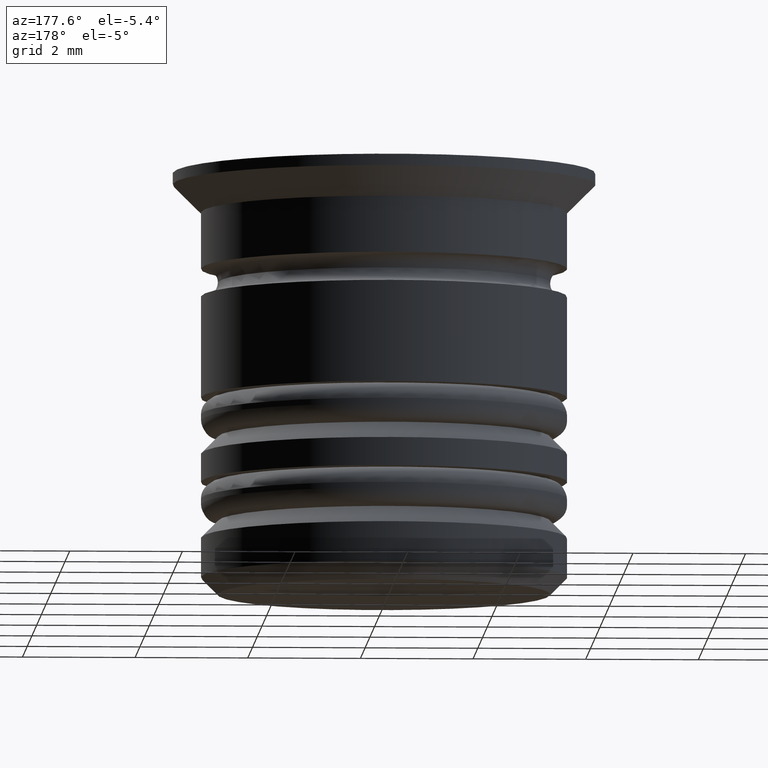
[diagram: clean part render]
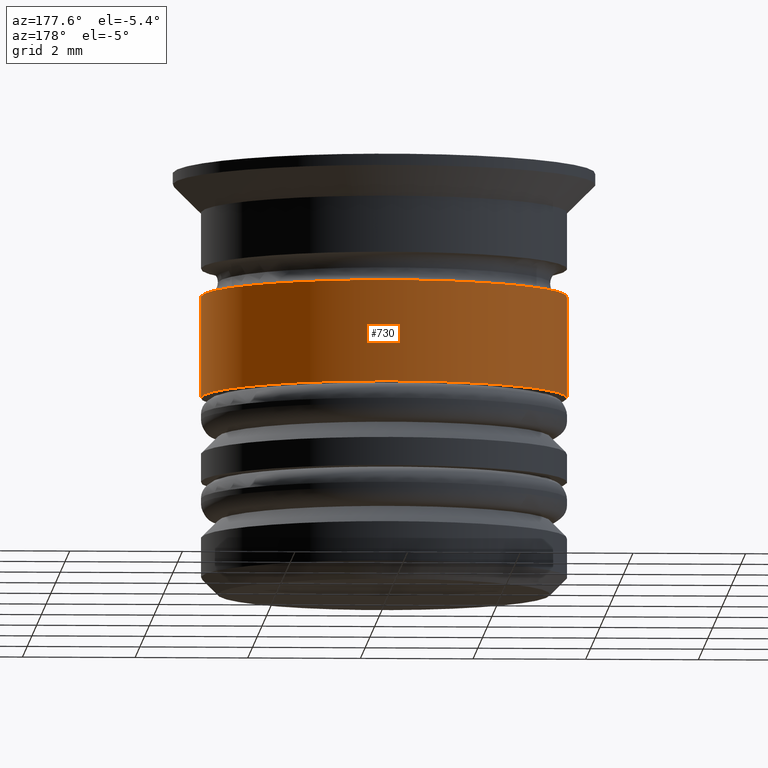
[diagram: same view with one face highlighted and labeled with its STEP entity id]
A machine part, auxiliary view. The second image highlights one B-rep face of the part: STEP entity #730.
In plain terms, the highlighted cylindrical surface (partial cylindrical patch) has radius 3.25 mm, axis along (-0, -0, 1).
Its self-contained STEP definition (entity closure, byte-faithful):
#130 = LINE ( 'NONE', #1698, #781 ) ;
#268 = ORIENTED_EDGE ( 'NONE', *, *, #1704, .T. ) ;
#334 = CARTESIAN_POINT ( 'NONE',  ( -3.249999999999999112, 3.980102097228896752E-16, -2.199999999999999734 ) ) ;
#419 = DIRECTION ( 'NONE',  ( 1.000000000000000000, 0.000000000000000000, 0.000000000000000000 ) ) ;
#513 = DIRECTION ( 'NONE',  ( 1.000000000000000000, 0.000000000000000000, 0.000000000000000000 ) ) ;
#554 = DIRECTION ( 'NONE',  ( -0.000000000000000000, -0.000000000000000000, 1.000000000000000000 ) ) ;
#584 = VERTEX_POINT ( 'NONE', #334 ) ;
#711 = CARTESIAN_POINT ( 'NONE',  ( 0.000000000000000000, 0.000000000000000000, -4.000000000000000000 ) ) ;
#730 = ADVANCED_FACE ( 'NONE', ( #771 ), #1316, .T. ) ;
#752 = CARTESIAN_POINT ( 'NONE',  ( 3.249999999999999112, 0.000000000000000000, -2.199999999999999734 ) ) ;
#771 = FACE_OUTER_BOUND ( 'NONE', #1028, .T. ) ;
#776 = AXIS2_PLACEMENT_3D ( 'NONE', #1197, #1447, #1618 ) ;
#781 = VECTOR ( 'NONE', #839, 1000.000000000000000 ) ;
#793 = VERTEX_POINT ( 'NONE', #752 ) ;
#839 = DIRECTION ( 'NONE',  ( -0.000000000000000000, -0.000000000000000000, 1.000000000000000000 ) ) ;
#857 = ORIENTED_EDGE ( 'NONE', *, *, #967, .F. ) ;
#925 = AXIS2_PLACEMENT_3D ( 'NONE', #1771, #937, #513 ) ;
#937 = DIRECTION ( 'NONE',  ( -0.000000000000000000, -0.000000000000000000, 1.000000000000000000 ) ) ;
#967 = EDGE_CURVE ( 'NONE', #793, #584, #1764, .T. ) ;
#1028 = EDGE_LOOP ( 'NONE', ( #268, #1246, #857, #1163 ) ) ;
#1067 = VECTOR ( 'NONE', #1605, 1000.000000000000000 ) ;
#1163 = ORIENTED_EDGE ( 'NONE', *, *, #1454, .F. ) ;
#1197 = CARTESIAN_POINT ( 'NONE',  ( 0.000000000000000000, 0.000000000000000000, 0.000000000000000000 ) ) ;
#1246 = ORIENTED_EDGE ( 'NONE', *, *, #1339, .T. ) ;
#1316 = CYLINDRICAL_SURFACE ( 'NONE', #776, 3.249999999999999556 ) ;
#1339 = EDGE_CURVE ( 'NONE', #1609, #584, #130, .T. ) ;
#1425 = VERTEX_POINT ( 'NONE', #1429 ) ;
#1429 = CARTESIAN_POINT ( 'NONE',  ( 3.250000000000000000, 0.000000000000000000, -4.000000000000000000 ) ) ;
#1447 = DIRECTION ( 'NONE',  ( -0.000000000000000000, -0.000000000000000000, 1.000000000000000000 ) ) ;
#1449 = LINE ( 'NONE', #1585, #1067 ) ;
#1454 = EDGE_CURVE ( 'NONE', #1425, #793, #1449, .T. ) ;
#1560 = CARTESIAN_POINT ( 'NONE',  ( -3.250000000000000444, 3.980102097228898231E-16, -4.000000000000000000 ) ) ;
#1570 = AXIS2_PLACEMENT_3D ( 'NONE', #711, #554, #419 ) ;
#1585 = CARTESIAN_POINT ( 'NONE',  ( 3.249999999999999556, 0.000000000000000000, 0.000000000000000000 ) ) ;
#1605 = DIRECTION ( 'NONE',  ( -0.000000000000000000, -0.000000000000000000, 1.000000000000000000 ) ) ;
#1609 = VERTEX_POINT ( 'NONE', #1560 ) ;
#1618 = DIRECTION ( 'NONE',  ( 1.000000000000000000, 0.000000000000000000, 0.000000000000000000 ) ) ;
#1654 = CIRCLE ( 'NONE', #1570, 3.250000000000000000 ) ;
#1698 = CARTESIAN_POINT ( 'NONE',  ( -3.249999999999999556, 3.980102097228897245E-16, 0.000000000000000000 ) ) ;
#1704 = EDGE_CURVE ( 'NONE', #1425, #1609, #1654, .T. ) ;
#1764 = CIRCLE ( 'NONE', #925, 3.249999999999999112 ) ;
#1771 = CARTESIAN_POINT ( 'NONE',  ( 0.000000000000000000, 0.000000000000000000, -2.199999999999999734 ) ) ;